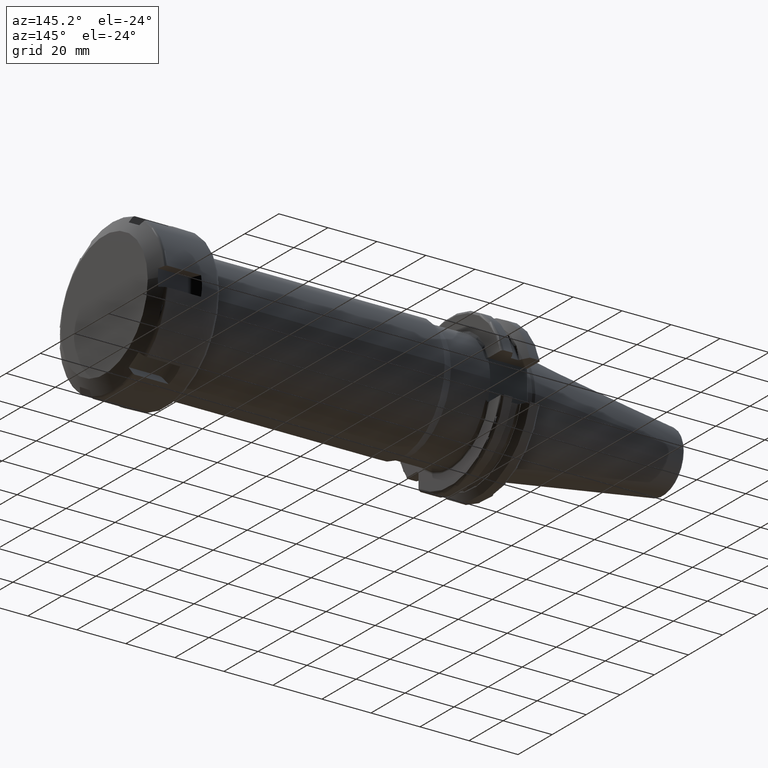
[diagram: clean part render]
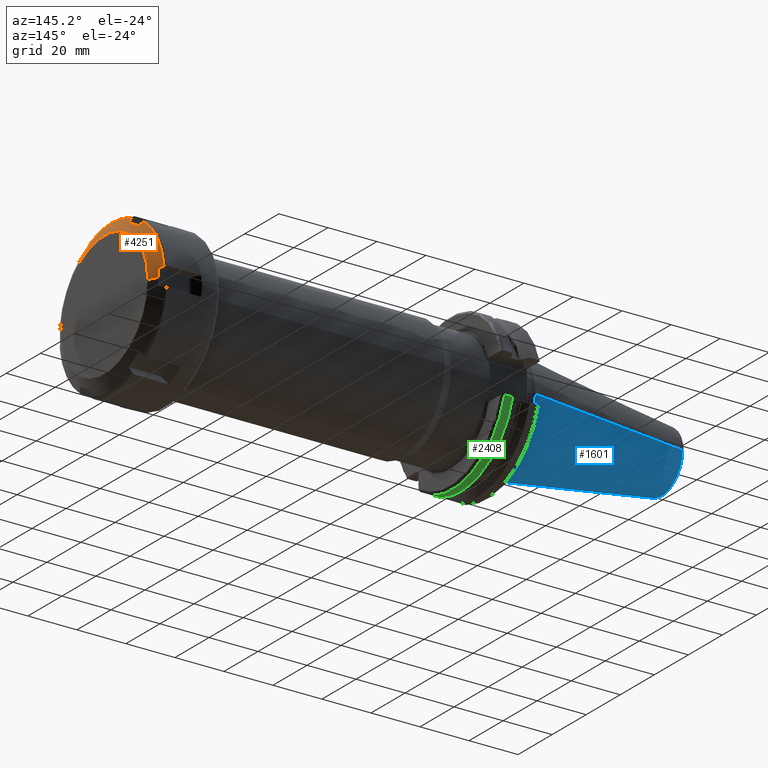
[diagram: same view with three faces highlighted in distinct colors, each labeled with its STEP entity id]
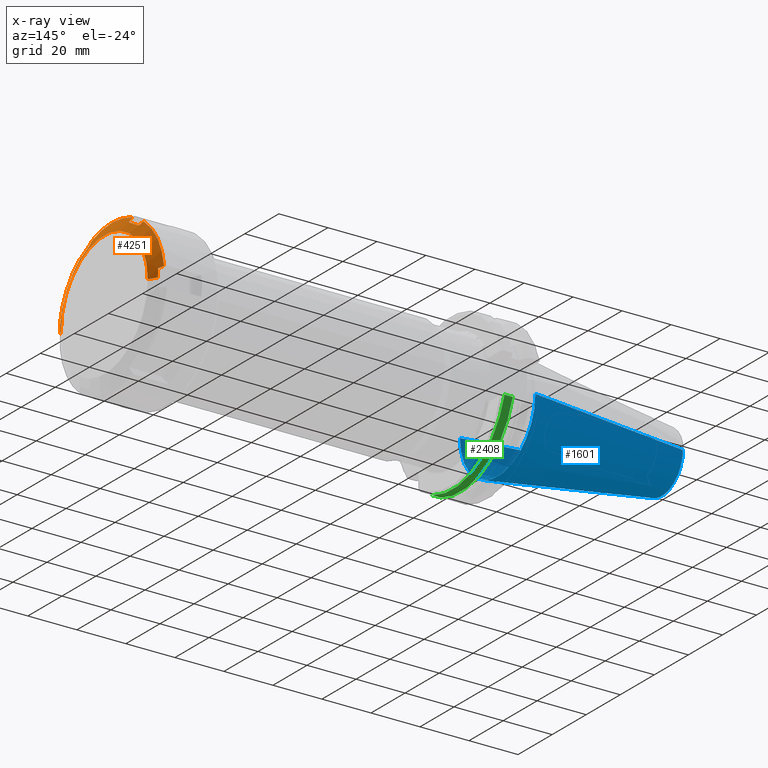
[diagram: x-ray of the same camera — body ghosted, the three highlighted faces saturated]
A machine part, auxiliary view with three faces highlighted in distinct colors.
The next image is the same camera in x-ray (body ghosted, the three faces saturated) — at least one of them is partly hidden behind the body in this view.
Their STEP definitions:

[orange] entity #4251 — the highlighted conical surface has half-angle 60 deg.
#3168=DIRECTION('',(-5.E-1,-8.660254037844E-1,0.E0));
#3169=VECTOR('',#3168,3.752776749692E0);
#3170=CARTESIAN_POINT('',(2.55E1,-2.55E1,0.E0));
#3171=LINE('',#3170,#3169);
#3177=DIRECTION('',(-5.E-1,8.660254037844E-1,0.E0));
#3178=VECTOR('',#3177,3.752776749692E0);
#3179=CARTESIAN_POINT('',(2.55E1,2.55E1,0.E0));
#3180=LINE('',#3179,#3178);
#3453=CARTESIAN_POINT('',(2.351130782476E1,-2.874999999997E1,3.35E0));
#3454=CARTESIAN_POINT('',(2.353617695757E1,-2.874999999997E1,2.977828809184E0));
#3455=CARTESIAN_POINT('',(2.357773662637E1,-2.874999999997E1,2.233458033279E0));
#3456=CARTESIAN_POINT('',(2.361525848375E1,-2.874999999997E1,1.116817767542E0));
#3457=CARTESIAN_POINT('',(2.362361162515E1,-2.874999999997E1,
3.722872262064E-1));
#3458=CARTESIAN_POINT('',(2.362361162515E1,-2.874999999997E1,0.E0));
#3460=CARTESIAN_POINT('',(2.239674230313E1,-3.063769284335E1,3.820654686622E0));
#3461=CARTESIAN_POINT('',(2.258533438069E1,-3.031843804101E1,3.741055524357E0));
#3462=CARTESIAN_POINT('',(2.295968976826E1,-2.968456909419E1,3.583014245782E0));
#3463=CARTESIAN_POINT('',(2.332838053240E1,-2.905997751876E1,3.427286075687E0));
#3464=CARTESIAN_POINT('',(2.351130782476E1,-2.874999999997E1,3.35E0));
#3466=CARTESIAN_POINT('',(2.239674230313E1,0.E0,0.E0));
#3467=DIRECTION('',(-1.E0,0.E0,0.E0));
#3468=DIRECTION('',(0.E0,-9.923139382473E-1,1.237459007814E-1));
#3469=AXIS2_PLACEMENT_3D('',#3466,#3467,#3468);
#3471=CARTESIAN_POINT('',(2.351130782476E1,-1.727618510266E1,2.322323035877E1));
#3472=CARTESIAN_POINT('',(2.332842823305E1,-1.749804769833E1,2.345297580209E1));
#3473=CARTESIAN_POINT('',(2.295978520802E1,-1.794515018410E1,2.391596397947E1));
#3474=CARTESIAN_POINT('',(2.258538211756E1,-1.839901028735E1,2.438594987460E1));
#3475=CARTESIAN_POINT('',(2.239674230313E1,-1.862763043938E1,2.462269297237E1));
#3477=CARTESIAN_POINT('',(2.351130782476E1,-1.147381489730E1,2.657323035877E1));
#3478=CARTESIAN_POINT('',(2.356105051412E1,-1.211849164162E1,2.620102606690E1));
#3479=CARTESIAN_POINT('',(2.362777625606E1,-1.340784245763E1,2.545661902620E1));
#3480=CARTESIAN_POINT('',(2.362777583851E1,-1.534217003691E1,2.433983447760E1));
#3481=CARTESIAN_POINT('',(2.356105010187E1,-1.663151370114E1,2.359543156598E1));
#3482=CARTESIAN_POINT('',(2.351130782476E1,-1.727618510266E1,2.322323035877E1));
#3484=CARTESIAN_POINT('',(2.239674230313E1,-1.201006240397E1,2.844334765900E1));
#3485=CARTESIAN_POINT('',(2.258533438069E1,-1.191936989944E1,2.812706530876E1));
#3486=CARTESIAN_POINT('',(2.295968976826E1,-1.173930318813E1,2.749909805885E1));
#3487=CARTESIAN_POINT('',(2.332838053240E1,-1.156187195180E1,2.688032180249E1));
#3488=CARTESIAN_POINT('',(2.351130782476E1,-1.147381489730E1,2.657323035877E1));
#3490=CARTESIAN_POINT('',(2.239674230313E1,0.E0,0.E0));
#3491=DIRECTION('',(-1.E0,0.E0,0.E0));
#3492=DIRECTION('',(0.E0,-3.889898754327E-1,9.212420294422E-1));
#3493=AXIS2_PLACEMENT_3D('',#3490,#3491,#3492);
#3495=CARTESIAN_POINT('',(2.351130782476E1,1.147381489730E1,2.657323035877E1));
#3496=CARTESIAN_POINT('',(2.332842823305E1,1.156184898978E1,2.688024172443E1));
#3497=CARTESIAN_POINT('',(2.295978520802E1,1.173925727016E1,2.749893792389E1));
#3498=CARTESIAN_POINT('',(2.258538211756E1,1.191934694315E1,2.812698525064E1));
#3499=CARTESIAN_POINT('',(2.239674230313E1,1.201006240397E1,2.844334765900E1));
#3501=CARTESIAN_POINT('',(2.351130782476E1,1.727618510266E1,2.322323035877E1));
#3502=CARTESIAN_POINT('',(2.356105051412E1,1.663150835835E1,2.359543465064E1));
#3503=CARTESIAN_POINT('',(2.362777625606E1,1.534215754233E1,2.433984169135E1));
#3504=CARTESIAN_POINT('',(2.362777583851E1,1.340782996305E1,2.545662623995E1));
#3505=CARTESIAN_POINT('',(2.356105010187E1,1.211848629883E1,2.620102915156E1));
#3506=CARTESIAN_POINT('',(2.351130782476E1,1.147381489730E1,2.657323035877E1));
#3508=CARTESIAN_POINT('',(2.239674230313E1,1.862763043938E1,2.462269297237E1));
#3509=CARTESIAN_POINT('',(2.258533438069E1,1.839906814157E1,2.438600978440E1));
#3510=CARTESIAN_POINT('',(2.295968976826E1,1.794526590606E1,2.391608381307E1));
#3511=CARTESIAN_POINT('',(2.332838053240E1,1.749810556696E1,2.345303572681E1));
#3512=CARTESIAN_POINT('',(2.351130782476E1,1.727618510266E1,2.322323035877E1));
#3514=CARTESIAN_POINT('',(2.239674230313E1,0.E0,0.E0));
#3515=DIRECTION('',(-1.E0,0.E0,0.E0));
#3516=DIRECTION('',(0.E0,6.033240628145E-1,7.974961286608E-1));
#3517=AXIS2_PLACEMENT_3D('',#3514,#3515,#3516);
#3519=CARTESIAN_POINT('',(2.351130782476E1,2.874999999997E1,3.35E0));
#3520=CARTESIAN_POINT('',(2.332842823305E1,2.905989668812E1,3.427265922344E0));
#3521=CARTESIAN_POINT('',(2.295978520802E1,2.968440745426E1,3.582973944421E0));
#3522=CARTESIAN_POINT('',(2.258538211756E1,3.031835723049E1,3.741035376033E0));
#3523=CARTESIAN_POINT('',(2.239674230313E1,3.063769284335E1,3.820654686622E0));
#3525=CARTESIAN_POINT('',(2.362361162515E1,2.874999999997E1,0.E0));
#3526=CARTESIAN_POINT('',(2.362361162515E1,2.874999999997E1,3.723033754199E-1));
#3527=CARTESIAN_POINT('',(2.361525781864E1,2.874999999997E1,1.116855572672E0));
#3528=CARTESIAN_POINT('',(2.357773435590E1,2.874999999997E1,2.233506677949E0));
#3529=CARTESIAN_POINT('',(2.353617556265E1,2.874999999997E1,2.977849684408E0));
#3530=CARTESIAN_POINT('',(2.351130782476E1,2.874999999997E1,3.35E0));
#3532=CARTESIAN_POINT('',(2.55E1,0.E0,0.E0));
#3533=DIRECTION('',(1.E0,0.E0,0.E0));
#3534=DIRECTION('',(0.E0,1.E0,0.E0));
#3535=AXIS2_PLACEMENT_3D('',#3532,#3533,#3534);
#3815=CARTESIAN_POINT('',(2.55E1,2.55E1,0.E0));
#3816=CARTESIAN_POINT('',(2.55E1,-2.55E1,0.E0));
#3817=VERTEX_POINT('',#3815);
#3818=VERTEX_POINT('',#3816);
#3827=VERTEX_POINT('',#3519);
#3828=VERTEX_POINT('',#3523);
#3829=VERTEX_POINT('',#3525);
#3853=VERTEX_POINT('',#3495);
#3854=VERTEX_POINT('',#3499);
#3855=VERTEX_POINT('',#3501);
#3856=VERTEX_POINT('',#3508);
#3868=VERTEX_POINT('',#3471);
#3869=VERTEX_POINT('',#3475);
#3870=VERTEX_POINT('',#3477);
#3871=VERTEX_POINT('',#3484);
#3883=VERTEX_POINT('',#3453);
#3884=VERTEX_POINT('',#3458);
#3885=VERTEX_POINT('',#3460);
#4220=CARTESIAN_POINT('',(2.394837115156E1,0.E0,0.E0));
#4221=DIRECTION('',(-1.E0,0.E0,0.E0));
#4222=DIRECTION('',(0.E0,1.E0,0.E0));
#4223=AXIS2_PLACEMENT_3D('',#4220,#4221,#4222);
#4224=CONICAL_SURFACE('',#4223,2.818749999998E1,6.E1);
#4226=ORIENTED_EDGE('',*,*,#4225,.F.);
#4228=ORIENTED_EDGE('',*,*,#4227,.F.);
#4229=ORIENTED_EDGE('',*,*,#4127,.T.);
#4231=ORIENTED_EDGE('',*,*,#4230,.F.);
#4233=ORIENTED_EDGE('',*,*,#4232,.F.);
#4235=ORIENTED_EDGE('',*,*,#4234,.F.);
#4236=ORIENTED_EDGE('',*,*,#4111,.T.);
#4238=ORIENTED_EDGE('',*,*,#4237,.F.);
#4239=ORIENTED_EDGE('',*,*,#4213,.F.);
#4240=ORIENTED_EDGE('',*,*,#4184,.F.);
#4241=ORIENTED_EDGE('',*,*,#4095,.T.);
#4243=ORIENTED_EDGE('',*,*,#4242,.F.);
#4245=ORIENTED_EDGE('',*,*,#4244,.F.);
#4246=ORIENTED_EDGE('',*,*,#3967,.F.);
#4247=ORIENTED_EDGE('',*,*,#3934,.T.);
#4248=ORIENTED_EDGE('',*,*,#3964,.T.);
#4249=EDGE_LOOP('',(#4226,#4228,#4229,#4231,#4233,#4235,#4236,#4238,#4239,#4240,
#4241,#4243,#4245,#4246,#4247,#4248));
#4250=FACE_OUTER_BOUND('',#4249,.F.);
#4251=ADVANCED_FACE('',(#4250),#4224,.T.);
#3459=B_SPLINE_CURVE_WITH_KNOTS('',3,(#3453,#3454,#3455,#3456,#3457,#3458),
.UNSPECIFIED.,.F.,.F.,(4,1,1,4),(0.E0,3.333333333333E-1,6.666666666667E-1,1.E0),
.UNSPECIFIED.);
#3465=B_SPLINE_CURVE_WITH_KNOTS('',3,(#3460,#3461,#3462,#3463,#3464),
.UNSPECIFIED.,.F.,.F.,(4,1,4),(0.E0,5.E-1,1.E0),.UNSPECIFIED.);
#3470=CIRCLE('',#3469,3.087499999997E1);
#3476=B_SPLINE_CURVE_WITH_KNOTS('',3,(#3471,#3472,#3473,#3474,#3475),
.UNSPECIFIED.,.F.,.F.,(4,1,4),(0.E0,5.E-1,1.E0),.UNSPECIFIED.);
#3483=B_SPLINE_CURVE_WITH_KNOTS('',3,(#3477,#3478,#3479,#3480,#3481,#3482),
.UNSPECIFIED.,.F.,.F.,(4,1,1,4),(0.E0,3.333333333333E-1,6.666666666667E-1,1.E0),
.UNSPECIFIED.);
#3489=B_SPLINE_CURVE_WITH_KNOTS('',3,(#3484,#3485,#3486,#3487,#3488),
.UNSPECIFIED.,.F.,.F.,(4,1,4),(0.E0,5.E-1,1.E0),.UNSPECIFIED.);
#3494=CIRCLE('',#3493,3.087499999997E1);
#3500=B_SPLINE_CURVE_WITH_KNOTS('',3,(#3495,#3496,#3497,#3498,#3499),
.UNSPECIFIED.,.F.,.F.,(4,1,4),(0.E0,5.E-1,1.E0),.UNSPECIFIED.);
#3507=B_SPLINE_CURVE_WITH_KNOTS('',3,(#3501,#3502,#3503,#3504,#3505,#3506),
.UNSPECIFIED.,.F.,.F.,(4,1,1,4),(0.E0,3.333333333333E-1,6.666666666667E-1,1.E0),
.UNSPECIFIED.);
#3513=B_SPLINE_CURVE_WITH_KNOTS('',3,(#3508,#3509,#3510,#3511,#3512),
.UNSPECIFIED.,.F.,.F.,(4,1,4),(0.E0,5.E-1,1.E0),.UNSPECIFIED.);
#3518=CIRCLE('',#3517,3.087499999997E1);
#3524=B_SPLINE_CURVE_WITH_KNOTS('',3,(#3519,#3520,#3521,#3522,#3523),
.UNSPECIFIED.,.F.,.F.,(4,1,4),(0.E0,5.E-1,1.E0),.UNSPECIFIED.);
#3531=B_SPLINE_CURVE_WITH_KNOTS('',3,(#3525,#3526,#3527,#3528,#3529,#3530),
.UNSPECIFIED.,.F.,.F.,(4,1,1,4),(0.E0,3.333333333333E-1,6.666666666667E-1,1.E0),
.UNSPECIFIED.);
#3536=CIRCLE('',#3535,2.55E1);
#3934=EDGE_CURVE('',#3817,#3818,#3536,.T.);
#3964=EDGE_CURVE('',#3818,#3884,#3171,.T.);
#3967=EDGE_CURVE('',#3817,#3829,#3180,.T.);
#4095=EDGE_CURVE('',#3856,#3828,#3518,.T.);
#4111=EDGE_CURVE('',#3871,#3854,#3494,.T.);
#4127=EDGE_CURVE('',#3885,#3869,#3470,.T.);
#4184=EDGE_CURVE('',#3856,#3855,#3513,.T.);
#4213=EDGE_CURVE('',#3855,#3853,#3507,.T.);
#4225=EDGE_CURVE('',#3883,#3884,#3459,.T.);
#4227=EDGE_CURVE('',#3885,#3883,#3465,.T.);
#4230=EDGE_CURVE('',#3868,#3869,#3476,.T.);
#4232=EDGE_CURVE('',#3870,#3868,#3483,.T.);
#4234=EDGE_CURVE('',#3871,#3870,#3489,.T.);
#4237=EDGE_CURVE('',#3853,#3854,#3500,.T.);
#4242=EDGE_CURVE('',#3827,#3828,#3524,.T.);
#4244=EDGE_CURVE('',#3829,#3827,#3531,.T.);

[blue] entity #1601 — the highlighted conical surface has half-angle 8.298 deg.
#32=CARTESIAN_POINT('',(-6.743710273571E1,0.E0,0.E0));
#33=DIRECTION('',(-1.E0,0.E0,0.E0));
#34=DIRECTION('',(0.E0,1.E0,0.E0));
#35=AXIS2_PLACEMENT_3D('',#32,#33,#34);
#47=DIRECTION('',(-9.895312636440E-1,-1.443186691705E-1,0.E0));
#48=VECTOR('',#47,6.765568998391E1);
#49=CARTESIAN_POINT('',(-4.896823332305E-1,2.215358204157E1,0.E0));
#50=LINE('',#49,#48);
#51=DIRECTION('',(-9.895312636440E-1,1.443186691705E-1,0.E0));
#52=VECTOR('',#51,6.765568998391E1);
#53=CARTESIAN_POINT('',(-4.896823332305E-1,-2.215358204157E1,0.E0));
#54=LINE('',#53,#52);
#55=CARTESIAN_POINT('',(-4.896823332305E-1,0.E0,0.E0));
#56=DIRECTION('',(-1.E0,0.E0,0.E0));
#57=DIRECTION('',(0.E0,1.E0,0.E0));
#58=AXIS2_PLACEMENT_3D('',#55,#56,#57);
#1265=CARTESIAN_POINT('',(-6.743710273571E1,1.238960290128E1,0.E0));
#1267=VERTEX_POINT('',#1265);
#1269=CARTESIAN_POINT('',(-6.743710273571E1,-1.238960290128E1,0.E0));
#1271=VERTEX_POINT('',#1269);
#1333=CARTESIAN_POINT('',(-4.896823332305E-1,2.215358204157E1,0.E0));
#1334=VERTEX_POINT('',#1333);
#1335=CARTESIAN_POINT('',(-4.896823332305E-1,-2.215358204157E1,0.E0));
#1336=VERTEX_POINT('',#1335);
#1589=CARTESIAN_POINT('',(-3.396339253447E1,0.E0,0.E0));
#1590=DIRECTION('',(1.E0,0.E0,0.E0));
#1591=DIRECTION('',(0.E0,-1.E0,0.E0));
#1592=AXIS2_PLACEMENT_3D('',#1589,#1590,#1591);
#1593=CONICAL_SURFACE('',#1592,1.727159247143E1,8.297826828206E0);
#1594=ORIENTED_EDGE('',*,*,#1579,.T.);
#1595=ORIENTED_EDGE('',*,*,#1556,.T.);
#1596=ORIENTED_EDGE('',*,*,#1583,.F.);
#1598=ORIENTED_EDGE('',*,*,#1597,.F.);
#1599=EDGE_LOOP('',(#1594,#1595,#1596,#1598));
#1600=FACE_OUTER_BOUND('',#1599,.F.);
#1601=ADVANCED_FACE('',(#1600),#1593,.T.);
#36=CIRCLE('',#35,1.238960290128E1);
#59=CIRCLE('',#58,2.215358204157E1);
#1556=EDGE_CURVE('',#1267,#1271,#36,.T.);
#1579=EDGE_CURVE('',#1334,#1267,#50,.T.);
#1583=EDGE_CURVE('',#1336,#1271,#54,.T.);
#1597=EDGE_CURVE('',#1334,#1336,#59,.T.);

[green] entity #2408 — the highlighted cylindrical surface (partial cylindrical patch) has radius 31.7625 mm, axis along (1, 0, 0).
#736=DIRECTION('',(1.E0,0.E0,0.E0));
#737=VECTOR('',#736,3.345946479578E0);
#738=CARTESIAN_POINT('',(1.470405352042E1,3.071231684927E1,-8.1E0));
#739=LINE('',#738,#737);
#740=CARTESIAN_POINT('',(1.470405352042E1,0.E0,0.E0));
#741=DIRECTION('',(1.E0,0.E0,0.E0));
#742=DIRECTION('',(0.E0,-5.777253049980E-1,-8.162312613254E-1));
#743=AXIS2_PLACEMENT_3D('',#740,#741,#742);
#745=DIRECTION('',(1.E0,0.E0,0.E0));
#746=VECTOR('',#745,3.345946479578E0);
#747=CARTESIAN_POINT('',(1.470405352042E1,-1.835E1,-2.592554543785E1));
#748=LINE('',#747,#746);
#749=CARTESIAN_POINT('',(1.805E1,0.E0,0.E0));
#750=DIRECTION('',(-1.E0,0.E0,0.E0));
#751=DIRECTION('',(0.E0,9.669363825036E-1,-2.550177095632E-1));
#752=AXIS2_PLACEMENT_3D('',#749,#750,#751);
#876=CARTESIAN_POINT('',(1.470405352042E1,3.071231684927E1,-8.1E0));
#888=CARTESIAN_POINT('',(1.470405352042E1,-1.835E1,-2.592554543785E1));
#1399=VERTEX_POINT('',#876);
#1441=CARTESIAN_POINT('',(1.805E1,3.071231684927E1,-8.1E0));
#1442=VERTEX_POINT('',#1441);
#1460=CARTESIAN_POINT('',(1.805E1,-1.835E1,-2.592554543785E1));
#1461=VERTEX_POINT('',#1460);
#1497=VERTEX_POINT('',#888);
#2396=CARTESIAN_POINT('',(-7.2615E1,0.E0,0.E0));
#2397=DIRECTION('',(1.E0,0.E0,0.E0));
#2398=DIRECTION('',(0.E0,-1.E0,0.E0));
#2399=AXIS2_PLACEMENT_3D('',#2396,#2397,#2398);
#2400=CYLINDRICAL_SURFACE('',#2399,3.17625E1);
#2401=ORIENTED_EDGE('',*,*,#1734,.F.);
#2403=ORIENTED_EDGE('',*,*,#2402,.F.);
#2404=ORIENTED_EDGE('',*,*,#2332,.T.);
#2405=ORIENTED_EDGE('',*,*,#2361,.F.);
#2406=EDGE_LOOP('',(#2401,#2403,#2404,#2405));
#2407=FACE_OUTER_BOUND('',#2406,.F.);
#2408=ADVANCED_FACE('',(#2407),#2400,.T.);
#744=CIRCLE('',#743,3.17625E1);
#753=CIRCLE('',#752,3.17625E1);
#1734=EDGE_CURVE('',#1399,#1442,#739,.T.);
#2332=EDGE_CURVE('',#1497,#1461,#748,.T.);
#2361=EDGE_CURVE('',#1442,#1461,#753,.T.);
#2402=EDGE_CURVE('',#1497,#1399,#744,.T.);